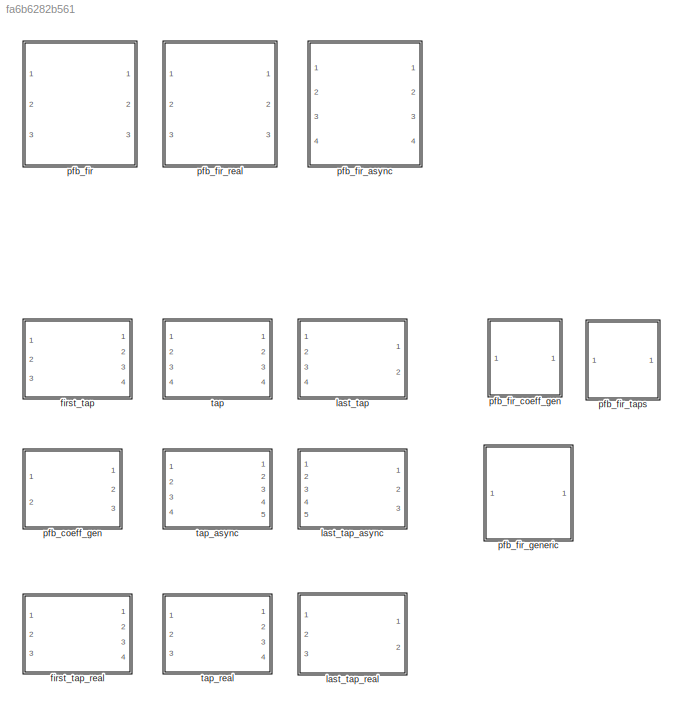
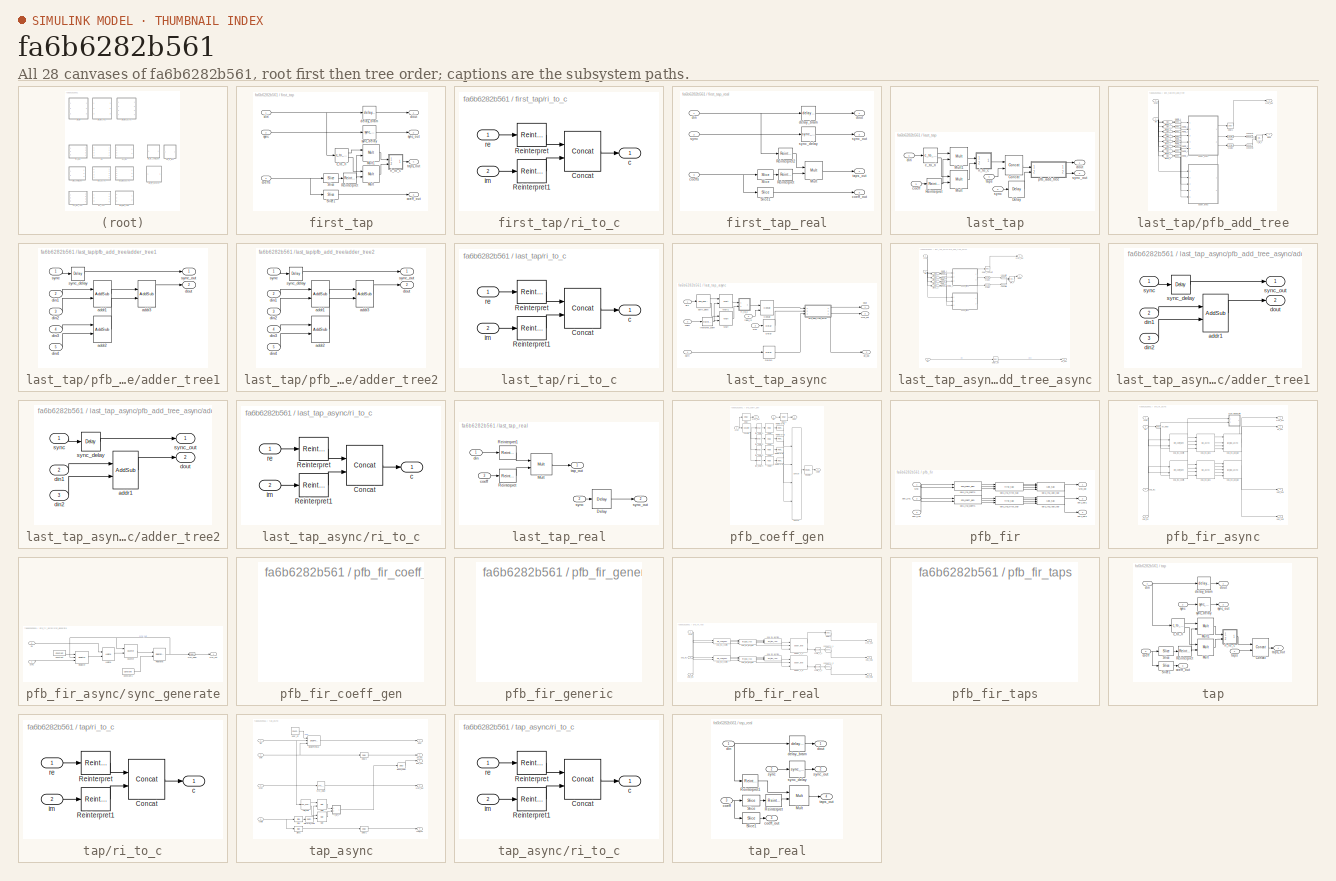
[diagram: thumbnail index - all 28 canvases of the model, root first then tree order]
MODEL slx_fa6b6282b561
KIND library
CONFIG AbsTol = auto
CONFIG FixedStep = auto
CONFIG MaxStep = auto
CONFIG MinStep = auto
CONFIG RelTol = 1e-3
CONFIG SampleTimeConstraint = Unconstrained
CONFIG Solver = ode45
CONFIG SolverMode = SingleTasking
CONFIG SolverName = ode45
CONFIG StartTime = 0.0
CONFIG StopTime = 10.0
BLOCK [SubSystem] first_tap
  AttributesFormatString = taps=4
  Ports = [3, 4]
  RequestExecContextInheritance = off
  UserDataPersistent = on
  Variant = off
BLOCK [Reference] first_tap/Mult  REF=xbsIndex_r4/Mult
  Ports = [2, 1]
  SourceBlock = xbsIndex_r4/Mult
  SourceType = Xilinx Multiplier Block
BLOCK [Reference] first_tap/Mult1  REF=xbsIndex_r4/Mult
  Ports = [2, 1]
  SourceBlock = xbsIndex_r4/Mult
  SourceType = Xilinx Multiplier Block
BLOCK [Reference] first_tap/Reinterpret  REF=xbsIndex_r4/Reinterpret
  Ports = [1, 1]
  SourceBlock = xbsIndex_r4/Reinterpret
  SourceType = Xilinx Type Reinterpreter Block
BLOCK [Reference] first_tap/Slice  REF=xbsIndex_r4/Slice
  Ports = [1, 1]
  SourceBlock = xbsIndex_r4/Slice
  SourceType = Xilinx Bit Slice Extractor Block
BLOCK [Reference] first_tap/Slice1  REF=xbsIndex_r4/Slice
  Ports = [1, 1]
  SourceBlock = xbsIndex_r4/Slice
  SourceType = Xilinx Bit Slice Extractor Block
BLOCK [Reference] first_tap/c_to_ri  REF=casper_library_misc/c_to_ri  (lib defined in mdl_357510c33b49, mdl_57b5f564ae26, +4 more)
  AttributesFormatString = _ r/i
  Ports = [1, 2]
  SourceBlock = casper_library_misc/c_to_ri
  SourceType = c_to_ri
  UserDataPersistent = on
BLOCK [Outport] first_tap/coeff_out
  IconDisplay = Port number
  Port = 3
BLOCK [Inport] first_tap/coeffs
  IconDisplay = Port number
  Port = 3
BLOCK [Reference] first_tap/delay_bram  REF=casper_library_delays/delay_bram  (lib defined in mdl_259a08a3fac5, mdl_65009615caaa, +5 more)
  Ports = [1, 1]
  SourceBlock = casper_library_delays/delay_bram
  SourceType = delay_bram
  UserDataPersistent = on
BLOCK [Inport] first_tap/din
  IconDisplay = Port number
BLOCK [Outport] first_tap/dout
  IconDisplay = Port number
BLOCK [SubSystem] first_tap/ri_to_c
  Ports = [2, 1]
  RequestExecContextInheritance = off
  Variant = off
BLOCK [Reference] first_tap/ri_to_c/Concat  REF=xbsIndex_r4/Concat
  Ports = [2, 1]
  SourceBlock = xbsIndex_r4/Concat
  SourceType = Xilinx Bus Concatenator Block
BLOCK [Reference] first_tap/ri_to_c/Reinterpret  REF=xbsIndex_r4/Reinterpret
  Ports = [1, 1]
  SourceBlock = xbsIndex_r4/Reinterpret
  SourceType = Xilinx Type Reinterpreter Block
BLOCK [Reference] first_tap/ri_to_c/Reinterpret1  REF=xbsIndex_r4/Reinterpret
  Ports = [1, 1]
  SourceBlock = xbsIndex_r4/Reinterpret
  SourceType = Xilinx Type Reinterpreter Block
BLOCK [Outport] first_tap/ri_to_c/c
  IconDisplay = Port number
BLOCK [Inport] first_tap/ri_to_c/im
  IconDisplay = Port number
  Port = 2
BLOCK [Inport] first_tap/ri_to_c/re
  IconDisplay = Port number
BLOCK [Inport] first_tap/sync
  IconDisplay = Port number
  Port = 2
BLOCK [Reference] first_tap/sync_delay  REF=casper_library_delays/sync_delay  (lib defined in mdl_259a08a3fac5, mdl_65009615caaa, +5 more)
  Ports = [1, 1]
  SourceBlock = casper_library_delays/sync_delay
  SourceType = sync_delay
BLOCK [Outport] first_tap/sync_out
  IconDisplay = Port number
  Port = 2
BLOCK [Outport] first_tap/taps_out
  IconDisplay = Port number
  Port = 4
BLOCK [SubSystem] first_tap_real
  AttributesFormatString = taps=4
  Ports = [3, 4]
  RequestExecContextInheritance = off
  UserDataPersistent = on
  Variant = off
BLOCK [Reference] first_tap_real/Mult  REF=xbsIndex_r4/Mult
  Ports = [2, 1]
  SourceBlock = xbsIndex_r4/Mult
  SourceType = Xilinx Multiplier Block
BLOCK [Reference] first_tap_real/Reinterpret  REF=xbsIndex_r4/Reinterpret
  Ports = [1, 1]
  SourceBlock = xbsIndex_r4/Reinterpret
  SourceType = Xilinx Type Reinterpreter Block
BLOCK [Reference] first_tap_real/Reinterpret2  REF=xbsIndex_r4/Reinterpret
  Ports = [1, 1]
  SourceBlock = xbsIndex_r4/Reinterpret
  SourceType = Xilinx Type Reinterpreter Block
BLOCK [Reference] first_tap_real/Slice  REF=xbsIndex_r4/Slice
  Ports = [1, 1]
  SourceBlock = xbsIndex_r4/Slice
  SourceType = Xilinx Bit Slice Extractor Block
BLOCK [Reference] first_tap_real/Slice1  REF=xbsIndex_r4/Slice
  Ports = [1, 1]
  SourceBlock = xbsIndex_r4/Slice
  SourceType = Xilinx Bit Slice Extractor Block
BLOCK [Outport] first_tap_real/coeff_out
  IconDisplay = Port number
  Port = 3
BLOCK [Inport] first_tap_real/coeffs
  IconDisplay = Port number
  Port = 3
BLOCK [Reference] first_tap_real/delay_bram  REF=casper_library_delays/delay_bram  (lib defined in mdl_259a08a3fac5, mdl_65009615caaa, +5 more)
  Ports = [1, 1]
  SourceBlock = casper_library_delays/delay_bram
  SourceType = delay_bram
  UserDataPersistent = on
BLOCK [Inport] first_tap_real/din
  IconDisplay = Port number
BLOCK [Outport] first_tap_real/dout
  IconDisplay = Port number
BLOCK [Inport] first_tap_real/sync
  IconDisplay = Port number
  Port = 2
BLOCK [Reference] first_tap_real/sync_delay  REF=casper_library_delays/sync_delay  (lib defined in mdl_259a08a3fac5, mdl_65009615caaa, +5 more)
  Ports = [1, 1]
  SourceBlock = casper_library_delays/sync_delay
  SourceType = sync_delay
BLOCK [Outport] first_tap_real/sync_out
  IconDisplay = Port number
  Port = 2
BLOCK [Outport] first_tap_real/taps_out
  IconDisplay = Port number
  Port = 4
BLOCK [SubSystem] last_tap
  AttributesFormatString = taps=4
  Ports = [4, 2]
  RequestExecContextInheritance = off
  UserDataPersistent = on
  Variant = off
BLOCK [Reference] last_tap/Concat  REF=xbsIndex_r4/Concat
  Ports = [2, 1]
  SourceBlock = xbsIndex_r4/Concat
  SourceType = Xilinx Bus Concatenator Block
BLOCK [Reference] last_tap/Delay  REF=xbsIndex_r4/Delay
  Ports = [1, 1]
  SourceBlock = xbsIndex_r4/Delay
  SourceType = Xilinx Delay Block
BLOCK [Reference] last_tap/Mult  REF=xbsIndex_r4/Mult
  Ports = [2, 1]
  SourceBlock = xbsIndex_r4/Mult
  SourceType = Xilinx Multiplier Block
BLOCK [Reference] last_tap/Mult1  REF=xbsIndex_r4/Mult
  Ports = [2, 1]
  SourceBlock = xbsIndex_r4/Mult
  SourceType = Xilinx Multiplier Block
BLOCK [Reference] last_tap/Reinterpret  REF=xbsIndex_r4/Reinterpret
  Ports = [1, 1]
  SourceBlock = xbsIndex_r4/Reinterpret
  SourceType = Xilinx Type Reinterpreter Block
BLOCK [Reference] last_tap/c_to_ri  REF=casper_library_misc/c_to_ri  (lib defined in mdl_357510c33b49, mdl_57b5f564ae26, +4 more)
  AttributesFormatString = _ r/i
  Ports = [1, 2]
  SourceBlock = casper_library_misc/c_to_ri
  SourceType = c_to_ri
  UserDataPersistent = on
BLOCK [Inport] last_tap/coeff
  IconDisplay = Port number
  Port = 3
BLOCK [Inport] last_tap/din
  IconDisplay = Port number
BLOCK [Outport] last_tap/dout
  IconDisplay = Port number
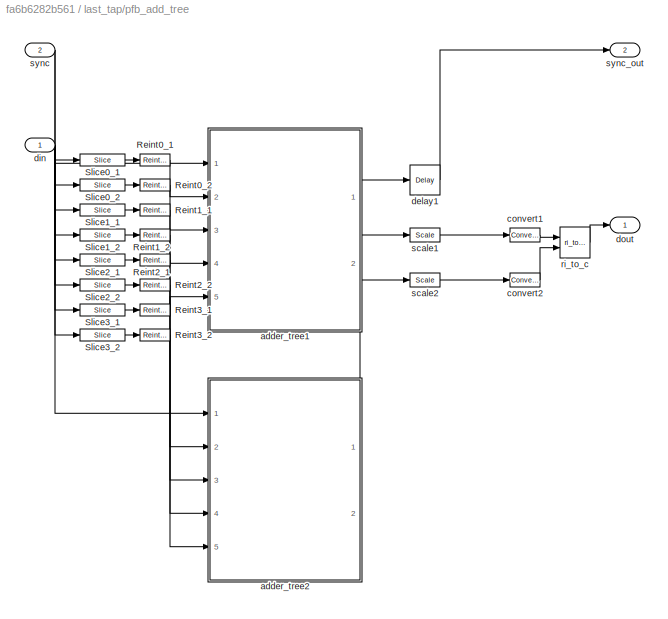
BLOCK [SubSystem] last_tap/pfb_add_tree
  AttributesFormatString = taps=4, add_latency=1
  Ports = [2, 2]
  RequestExecContextInheritance = off
  UserDataPersistent = on
  Variant = off
BLOCK [Reference] last_tap/pfb_add_tree/Reint0_1  REF=xbsIndex_r4/Reinterpret
  Ports = [1, 1]
  SourceBlock = xbsIndex_r4/Reinterpret
  SourceType = Xilinx Type Reinterpreter Block
BLOCK [Reference] last_tap/pfb_add_tree/Reint0_2  REF=xbsIndex_r4/Reinterpret
  Ports = [1, 1]
  SourceBlock = xbsIndex_r4/Reinterpret
  SourceType = Xilinx Type Reinterpreter Block
BLOCK [Reference] last_tap/pfb_add_tree/Reint1_1  REF=xbsIndex_r4/Reinterpret
  Ports = [1, 1]
  SourceBlock = xbsIndex_r4/Reinterpret
  SourceType = Xilinx Type Reinterpreter Block
BLOCK [Reference] last_tap/pfb_add_tree/Reint1_2  REF=xbsIndex_r4/Reinterpret
  Ports = [1, 1]
  SourceBlock = xbsIndex_r4/Reinterpret
  SourceType = Xilinx Type Reinterpreter Block
BLOCK [Reference] last_tap/pfb_add_tree/Reint2_1  REF=xbsIndex_r4/Reinterpret
  Ports = [1, 1]
  SourceBlock = xbsIndex_r4/Reinterpret
  SourceType = Xilinx Type Reinterpreter Block
BLOCK [Reference] last_tap/pfb_add_tree/Reint2_2  REF=xbsIndex_r4/Reinterpret
  Ports = [1, 1]
  SourceBlock = xbsIndex_r4/Reinterpret
  SourceType = Xilinx Type Reinterpreter Block
BLOCK [Reference] last_tap/pfb_add_tree/Reint3_1  REF=xbsIndex_r4/Reinterpret
  Ports = [1, 1]
  SourceBlock = xbsIndex_r4/Reinterpret
  SourceType = Xilinx Type Reinterpreter Block
BLOCK [Reference] last_tap/pfb_add_tree/Reint3_2  REF=xbsIndex_r4/Reinterpret
  Ports = [1, 1]
  SourceBlock = xbsIndex_r4/Reinterpret
  SourceType = Xilinx Type Reinterpreter Block
BLOCK [Reference] last_tap/pfb_add_tree/Slice0_1  REF=xbsIndex_r4/Slice
  Ports = [1, 1]
  SourceBlock = xbsIndex_r4/Slice
  SourceType = Xilinx Bit Slice Extractor Block
BLOCK [Reference] last_tap/pfb_add_tree/Slice0_2  REF=xbsIndex_r4/Slice
  Ports = [1, 1]
  SourceBlock = xbsIndex_r4/Slice
  SourceType = Xilinx Bit Slice Extractor Block
BLOCK [Reference] last_tap/pfb_add_tree/Slice1_1  REF=xbsIndex_r4/Slice
  Ports = [1, 1]
  SourceBlock = xbsIndex_r4/Slice
  SourceType = Xilinx Bit Slice Extractor Block
BLOCK [Reference] last_tap/pfb_add_tree/Slice1_2  REF=xbsIndex_r4/Slice
  Ports = [1, 1]
  SourceBlock = xbsIndex_r4/Slice
  SourceType = Xilinx Bit Slice Extractor Block
BLOCK [Reference] last_tap/pfb_add_tree/Slice2_1  REF=xbsIndex_r4/Slice
  Ports = [1, 1]
  SourceBlock = xbsIndex_r4/Slice
  SourceType = Xilinx Bit Slice Extractor Block
BLOCK [Reference] last_tap/pfb_add_tree/Slice2_2  REF=xbsIndex_r4/Slice
  Ports = [1, 1]
  SourceBlock = xbsIndex_r4/Slice
  SourceType = Xilinx Bit Slice Extractor Block
BLOCK [Reference] last_tap/pfb_add_tree/Slice3_1  REF=xbsIndex_r4/Slice
  Ports = [1, 1]
  SourceBlock = xbsIndex_r4/Slice
  SourceType = Xilinx Bit Slice Extractor Block
BLOCK [Reference] last_tap/pfb_add_tree/Slice3_2  REF=xbsIndex_r4/Slice
  Ports = [1, 1]
  SourceBlock = xbsIndex_r4/Slice
  SourceType = Xilinx Bit Slice Extractor Block
BLOCK [SubSystem] last_tap/pfb_add_tree/adder_tree1
  AncestorBlock = casper_library_misc/adder_tree
  AttributesFormatString = latency 2
  Ports = [5, 2]
  RequestExecContextInheritance = off
  UserDataPersistent = on
  Variant = off
BLOCK [Reference] last_tap/pfb_add_tree/adder_tree1/addr1  REF=xbsIndex_r4/AddSub
  Ports = [2, 1]
  SourceBlock = xbsIndex_r4/AddSub
  SourceType = Xilinx Adder/Subtracter Block
BLOCK [Reference] last_tap/pfb_add_tree/adder_tree1/addr2  REF=xbsIndex_r4/AddSub
  Ports = [2, 1]
  SourceBlock = xbsIndex_r4/AddSub
  SourceType = Xilinx Adder/Subtracter Block
BLOCK [Reference] last_tap/pfb_add_tree/adder_tree1/addr3  REF=xbsIndex_r4/AddSub
  Ports = [2, 1]
  SourceBlock = xbsIndex_r4/AddSub
  SourceType = Xilinx Adder/Subtracter Block
BLOCK [Inport] last_tap/pfb_add_tree/adder_tree1/din1
  IconDisplay = Port number
  Port = 2
BLOCK [Inport] last_tap/pfb_add_tree/adder_tree1/din2
  IconDisplay = Port number
  Port = 3
BLOCK [Inport] last_tap/pfb_add_tree/adder_tree1/din3
  IconDisplay = Port number
  Port = 4
BLOCK [Inport] last_tap/pfb_add_tree/adder_tree1/din4
  IconDisplay = Port number
  Port = 5
BLOCK [Outport] last_tap/pfb_add_tree/adder_tree1/dout
  IconDisplay = Port number
  Port = 2
BLOCK [Inport] last_tap/pfb_add_tree/adder_tree1/sync
  IconDisplay = Port number
BLOCK [Reference] last_tap/pfb_add_tree/adder_tree1/sync_delay  REF=xbsIndex_r4/Delay
  Ports = [1, 1]
  SourceBlock = xbsIndex_r4/Delay
  SourceType = Xilinx Delay Block
BLOCK [Outport] last_tap/pfb_add_tree/adder_tree1/sync_out
  IconDisplay = Port number
BLOCK [SubSystem] last_tap/pfb_add_tree/adder_tree2
  AncestorBlock = casper_library_misc/adder_tree
  AttributesFormatString = latency 2
  Ports = [5, 2]
  RequestExecContextInheritance = off
  UserDataPersistent = on
  Variant = off
BLOCK [Reference] last_tap/pfb_add_tree/adder_tree2/addr1  REF=xbsIndex_r4/AddSub
  Ports = [2, 1]
  SourceBlock = xbsIndex_r4/AddSub
  SourceType = Xilinx Adder/Subtracter Block
BLOCK [Reference] last_tap/pfb_add_tree/adder_tree2/addr2  REF=xbsIndex_r4/AddSub
  Ports = [2, 1]
  SourceBlock = xbsIndex_r4/AddSub
  SourceType = Xilinx Adder/Subtracter Block
BLOCK [Reference] last_tap/pfb_add_tree/adder_tree2/addr3  REF=xbsIndex_r4/AddSub
  Ports = [2, 1]
  SourceBlock = xbsIndex_r4/AddSub
  SourceType = Xilinx Adder/Subtracter Block
BLOCK [Inport] last_tap/pfb_add_tree/adder_tree2/din1
  IconDisplay = Port number
  Port = 2
BLOCK [Inport] last_tap/pfb_add_tree/adder_tree2/din2
  IconDisplay = Port number
  Port = 3
BLOCK [Inport] last_tap/pfb_add_tree/adder_tree2/din3
  IconDisplay = Port number
  Port = 4
BLOCK [Inport] last_tap/pfb_add_tree/adder_tree2/din4
  IconDisplay = Port number
  Port = 5
BLOCK [Outport] last_tap/pfb_add_tree/adder_tree2/dout
  IconDisplay = Port number
  Port = 2
BLOCK [Inport] last_tap/pfb_add_tree/adder_tree2/sync
  IconDisplay = Port number
BLOCK [Reference] last_tap/pfb_add_tree/adder_tree2/sync_delay  REF=xbsIndex_r4/Delay
  Ports = [1, 1]
  SourceBlock = xbsIndex_r4/Delay
  SourceType = Xilinx Delay Block
BLOCK [Outport] last_tap/pfb_add_tree/adder_tree2/sync_out
  IconDisplay = Port number
BLOCK [Reference] last_tap/pfb_add_tree/convert1  REF=xbsIndex_r4/Convert
  Ports = [1, 1]
  SourceBlock = xbsIndex_r4/Convert
  SourceType = Xilinx Type Converter Block
BLOCK [Reference] last_tap/pfb_add_tree/convert2  REF=xbsIndex_r4/Convert
  Ports = [1, 1]
  SourceBlock = xbsIndex_r4/Convert
  SourceType = Xilinx Type Converter Block
BLOCK [Reference] last_tap/pfb_add_tree/delay1  REF=xbsIndex_r4/Delay
  Ports = [1, 1]
  SourceBlock = xbsIndex_r4/Delay
  SourceType = Xilinx Delay Block
BLOCK [Inport] last_tap/pfb_add_tree/din
  IconDisplay = Port number
BLOCK [Outport] last_tap/pfb_add_tree/dout
  IconDisplay = Port number
BLOCK [Reference] last_tap/pfb_add_tree/ri_to_c  REF=casper_library_misc/ri_to_c  (lib defined in mdl_357510c33b49, mdl_57b5f564ae26, +4 more)
  Ports = [2, 1]
  SourceBlock = casper_library_misc/ri_to_c
  SourceType = ri_to_c
  UserDataPersistent = on
BLOCK [Reference] last_tap/pfb_add_tree/scale1  REF=xbsIndex_r4/Scale
  Ports = [1, 1]
  SourceBlock = xbsIndex_r4/Scale
  SourceType = Xilinx Input Scaler Block
BLOCK [Reference] last_tap/pfb_add_tree/scale2  REF=xbsIndex_r4/Scale
  Ports = [1, 1]
  SourceBlock = xbsIndex_r4/Scale
  SourceType = Xilinx Input Scaler Block
BLOCK [Inport] last_tap/pfb_add_tree/sync
  IconDisplay = Port number
  Port = 2
BLOCK [Outport] last_tap/pfb_add_tree/sync_out
  IconDisplay = Port number
  Port = 2
BLOCK [SubSystem] last_tap/ri_to_c
  Ports = [2, 1]
  RequestExecContextInheritance = off
  Variant = off
BLOCK [Reference] last_tap/ri_to_c/Concat  REF=xbsIndex_r4/Concat
  Ports = [2, 1]
  SourceBlock = xbsIndex_r4/Concat
  SourceType = Xilinx Bus Concatenator Block
BLOCK [Reference] last_tap/ri_to_c/Reinterpret  REF=xbsIndex_r4/Reinterpret
  Ports = [1, 1]
  SourceBlock = xbsIndex_r4/Reinterpret
  SourceType = Xilinx Type Reinterpreter Block
BLOCK [Reference] last_tap/ri_to_c/Reinterpret1  REF=xbsIndex_r4/Reinterpret
  Ports = [1, 1]
  SourceBlock = xbsIndex_r4/Reinterpret
  SourceType = Xilinx Type Reinterpreter Block
BLOCK [Outport] last_tap/ri_to_c/c
  IconDisplay = Port number
BLOCK [Inport] last_tap/ri_to_c/im
  IconDisplay = Port number
  Port = 2
BLOCK [Inport] last_tap/ri_to_c/re
  IconDisplay = Port number
BLOCK [Inport] last_tap/sync
  IconDisplay = Port number
  Port = 2
BLOCK [Outport] last_tap/sync_out
  IconDisplay = Port number
  Port = 2
BLOCK [Inport] last_tap/taps
  IconDisplay = Port number
  Port = 4
BLOCK [SubSystem] last_tap_async
  AttributesFormatString = input(1), tap(2,2)
  Ports = [5, 3]
  RequestExecContextInheritance = off
  UserDataPersistent = on
  Variant = off
BLOCK [Reference] last_tap_async/Concat  REF=xbsIndex_r4/Concat
  Ports = [2, 1]
  SourceBlock = xbsIndex_r4/Concat
  SourceType = Xilinx Bus Concatenator Block
BLOCK [Reference] last_tap_async/Delay  REF=xbsIndex_r4/Delay
  Ports = [1, 1]
  SourceBlock = xbsIndex_r4/Delay
  SourceType = Xilinx Delay Block
BLOCK [Reference] last_tap_async/Delay1  REF=xbsIndex_r4/Delay
  Ports = [1, 1]
  SourceBlock = xbsIndex_r4/Delay
  SourceType = Xilinx Delay Block
BLOCK [Reference] last_tap_async/Mult  REF=xbsIndex_r4/Mult
  Ports = [2, 1]
  SourceBlock = xbsIndex_r4/Mult
  SourceType = Xilinx Multiplier Block
BLOCK [Reference] last_tap_async/Mult1  REF=xbsIndex_r4/Mult
  Ports = [2, 1]
  SourceBlock = xbsIndex_r4/Mult
  SourceType = Xilinx Multiplier Block
BLOCK [Inport] last_tap_async/coeff
  IconDisplay = Port number
  Port = 3
BLOCK [Inport] last_tap_async/din
  IconDisplay = Port number
BLOCK [Outport] last_tap_async/dout
  IconDisplay = Port number
BLOCK [Outport] last_tap_async/dv_out
  IconDisplay = Port number
  Port = 3
BLOCK [Inport] last_tap_async/dvin
  IconDisplay = Port number
  Port = 4
BLOCK [Reference] last_tap_async/interpret_coeff  REF=xbsIndex_r4/Reinterpret
  Ports = [1, 1]
  SourceBlock = xbsIndex_r4/Reinterpret
  SourceType = Xilinx Type Reinterpreter Block
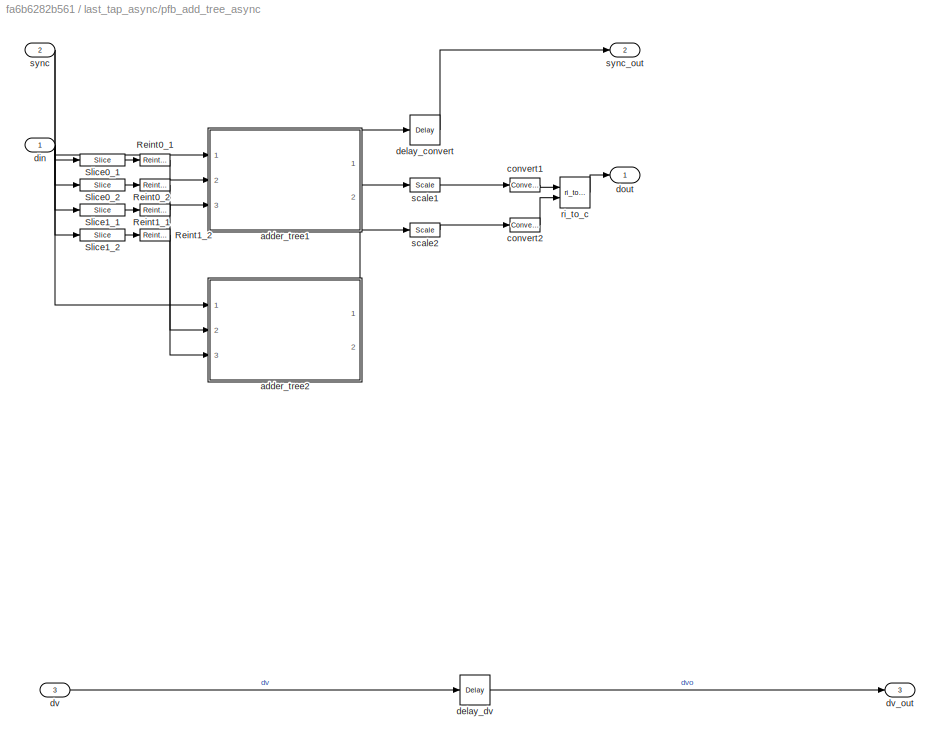
BLOCK [SubSystem] last_tap_async/pfb_add_tree_async
  AttributesFormatString = input(1), taps(2), add_lat(1)
  Ports = [3, 3]
  RequestExecContextInheritance = off
  UserDataPersistent = on
  Variant = off
BLOCK [Reference] last_tap_async/pfb_add_tree_async/Reint0_1  REF=xbsIndex_r4/Reinterpret
  Ports = [1, 1]
  SourceBlock = xbsIndex_r4/Reinterpret
  SourceType = Xilinx Type Reinterpreter Block
BLOCK [Reference] last_tap_async/pfb_add_tree_async/Reint0_2  REF=xbsIndex_r4/Reinterpret
  Ports = [1, 1]
  SourceBlock = xbsIndex_r4/Reinterpret
  SourceType = Xilinx Type Reinterpreter Block
BLOCK [Reference] last_tap_async/pfb_add_tree_async/Reint1_1  REF=xbsIndex_r4/Reinterpret
  Ports = [1, 1]
  SourceBlock = xbsIndex_r4/Reinterpret
  SourceType = Xilinx Type Reinterpreter Block
BLOCK [Reference] last_tap_async/pfb_add_tree_async/Reint1_2  REF=xbsIndex_r4/Reinterpret
  Ports = [1, 1]
  SourceBlock = xbsIndex_r4/Reinterpret
  SourceType = Xilinx Type Reinterpreter Block
BLOCK [Reference] last_tap_async/pfb_add_tree_async/Slice0_1  REF=xbsIndex_r4/Slice
  Ports = [1, 1]
  SourceBlock = xbsIndex_r4/Slice
  SourceType = Xilinx Bit Slice Extractor Block
BLOCK [Reference] last_tap_async/pfb_add_tree_async/Slice0_2  REF=xbsIndex_r4/Slice
  Ports = [1, 1]
  SourceBlock = xbsIndex_r4/Slice
  SourceType = Xilinx Bit Slice Extractor Block
BLOCK [Reference] last_tap_async/pfb_add_tree_async/Slice1_1  REF=xbsIndex_r4/Slice
  Ports = [1, 1]
  SourceBlock = xbsIndex_r4/Slice
  SourceType = Xilinx Bit Slice Extractor Block
BLOCK [Reference] last_tap_async/pfb_add_tree_async/Slice1_2  REF=xbsIndex_r4/Slice
  Ports = [1, 1]
  SourceBlock = xbsIndex_r4/Slice
  SourceType = Xilinx Bit Slice Extractor Block
BLOCK [SubSystem] last_tap_async/pfb_add_tree_async/adder_tree1
  AncestorBlock = casper_library_misc/adder_tree
  AttributesFormatString = latency 1
  Ports = [3, 2]
  RequestExecContextInheritance = off
  UserDataPersistent = on
  Variant = off
BLOCK [Reference] last_tap_async/pfb_add_tree_async/adder_tree1/addr1  REF=xbsIndex_r4/AddSub
  Ports = [2, 1]
  SourceBlock = xbsIndex_r4/AddSub
  SourceType = Xilinx Adder/Subtracter Block
BLOCK [Inport] last_tap_async/pfb_add_tree_async/adder_tree1/din1
  IconDisplay = Port number
  Port = 2
BLOCK [Inport] last_tap_async/pfb_add_tree_async/adder_tree1/din2
  IconDisplay = Port number
  Port = 3
BLOCK [Outport] last_tap_async/pfb_add_tree_async/adder_tree1/dout
  IconDisplay = Port number
  Port = 2
BLOCK [Inport] last_tap_async/pfb_add_tree_async/adder_tree1/sync
  IconDisplay = Port number
BLOCK [Reference] last_tap_async/pfb_add_tree_async/adder_tree1/sync_delay  REF=xbsIndex_r4/Delay
  Ports = [1, 1]
  SourceBlock = xbsIndex_r4/Delay
  SourceType = Xilinx Delay Block
BLOCK [Outport] last_tap_async/pfb_add_tree_async/adder_tree1/sync_out
  IconDisplay = Port number
BLOCK [SubSystem] last_tap_async/pfb_add_tree_async/adder_tree2
  AncestorBlock = casper_library_misc/adder_tree
  AttributesFormatString = latency 1
  Ports = [3, 2]
  RequestExecContextInheritance = off
  UserDataPersistent = on
  Variant = off
BLOCK [Reference] last_tap_async/pfb_add_tree_async/adder_tree2/addr1  REF=xbsIndex_r4/AddSub
  Ports = [2, 1]
  SourceBlock = xbsIndex_r4/AddSub
  SourceType = Xilinx Adder/Subtracter Block
BLOCK [Inport] last_tap_async/pfb_add_tree_async/adder_tree2/din1
  IconDisplay = Port number
  Port = 2
BLOCK [Inport] last_tap_async/pfb_add_tree_async/adder_tree2/din2
  IconDisplay = Port number
  Port = 3
BLOCK [Outport] last_tap_async/pfb_add_tree_async/adder_tree2/dout
  IconDisplay = Port number
  Port = 2
BLOCK [Inport] last_tap_async/pfb_add_tree_async/adder_tree2/sync
  IconDisplay = Port number
BLOCK [Reference] last_tap_async/pfb_add_tree_async/adder_tree2/sync_delay  REF=xbsIndex_r4/Delay
  Ports = [1, 1]
  SourceBlock = xbsIndex_r4/Delay
  SourceType = Xilinx Delay Block
BLOCK [Outport] last_tap_async/pfb_add_tree_async/adder_tree2/sync_out
  IconDisplay = Port number
BLOCK [Reference] last_tap_async/pfb_add_tree_async/convert1  REF=xbsIndex_r4/Convert
  Ports = [1, 1]
  SourceBlock = xbsIndex_r4/Convert
  SourceType = Xilinx Type Converter Block
BLOCK [Reference] last_tap_async/pfb_add_tree_async/convert2  REF=xbsIndex_r4/Convert
  Ports = [1, 1]
  SourceBlock = xbsIndex_r4/Convert
  SourceType = Xilinx Type Converter Block
BLOCK [Reference] last_tap_async/pfb_add_tree_async/delay_convert  REF=xbsIndex_r4/Delay
  Ports = [1, 1]
  SourceBlock = xbsIndex_r4/Delay
  SourceType = Xilinx Delay Block
BLOCK [Reference] last_tap_async/pfb_add_tree_async/delay_dv  REF=xbsIndex_r4/Delay
  Ports = [1, 1]
  SourceBlock = xbsIndex_r4/Delay
  SourceType = Xilinx Delay Block
BLOCK [Inport] last_tap_async/pfb_add_tree_async/din
  IconDisplay = Port number
BLOCK [Outport] last_tap_async/pfb_add_tree_async/dout
  IconDisplay = Port number
BLOCK [Inport] last_tap_async/pfb_add_tree_async/dv
  IconDisplay = Port number
  Port = 3
BLOCK [Outport] last_tap_async/pfb_add_tree_async/dv_out
  IconDisplay = Port number
  Port = 3
BLOCK [Reference] last_tap_async/pfb_add_tree_async/ri_to_c  REF=casper_library_misc/ri_to_c  (lib defined in mdl_357510c33b49, mdl_57b5f564ae26, +4 more)
  Ports = [2, 1]
  SourceBlock = casper_library_misc/ri_to_c
  SourceType = ri_to_c
  UserDataPersistent = on
BLOCK [Reference] last_tap_async/pfb_add_tree_async/scale1  REF=xbsIndex_r4/Scale
  Ports = [1, 1]
  SourceBlock = xbsIndex_r4/Scale
  SourceType = Xilinx Input Scaler Block
BLOCK [Reference] last_tap_async/pfb_add_tree_async/scale2  REF=xbsIndex_r4/Scale
  Ports = [1, 1]
  SourceBlock = xbsIndex_r4/Scale
  SourceType = Xilinx Input Scaler Block
BLOCK [Inport] last_tap_async/pfb_add_tree_async/sync
  IconDisplay = Port number
  Port = 2
BLOCK [Outport] last_tap_async/pfb_add_tree_async/sync_out
  IconDisplay = Port number
  Port = 2
BLOCK [SubSystem] last_tap_async/ri_to_c
  Ports = [2, 1]
  RequestExecContextInheritance = off
  Variant = off
BLOCK [Reference] last_tap_async/ri_to_c/Concat  REF=xbsIndex_r4/Concat
  Ports = [2, 1]
  SourceBlock = xbsIndex_r4/Concat
  SourceType = Xilinx Bus Concatenator Block
BLOCK [Reference] last_tap_async/ri_to_c/Reinterpret  REF=xbsIndex_r4/Reinterpret
  Ports = [1, 1]
  SourceBlock = xbsIndex_r4/Reinterpret
  SourceType = Xilinx Type Reinterpreter Block
BLOCK [Reference] last_tap_async/ri_to_c/Reinterpret1  REF=xbsIndex_r4/Reinterpret
  Ports = [1, 1]
  SourceBlock = xbsIndex_r4/Reinterpret
  SourceType = Xilinx Type Reinterpreter Block
BLOCK [Outport] last_tap_async/ri_to_c/c
  IconDisplay = Port number
BLOCK [Inport] last_tap_async/ri_to_c/im
  IconDisplay = Port number
  Port = 2
BLOCK [Inport] last_tap_async/ri_to_c/re
  IconDisplay = Port number
BLOCK [Reference] last_tap_async/split_data  REF=casper_library_flow_control/bus_expand  (lib defined in mdl_5c20b51ea67c, mdl_83efbf0f8acb, +3 more)
  AttributesFormatString = 2 outputs
  Ports = [1, 2]
  SourceBlock = casper_library_flow_control/bus_expand
  SourceType = bus_expand
  UserDataPersistent = on
BLOCK [Inport] last_tap_async/sync
  IconDisplay = Port number
  Port = 2
BLOCK [Outport] last_tap_async/sync_out
  IconDisplay = Port number
  Port = 2
BLOCK [Inport] last_tap_async/taps_in
  IconDisplay = Port number
  Port = 5
BLOCK [SubSystem] last_tap_real
  Ports = [3, 2]
  RequestExecContextInheritance = off
  UserDataPersistent = on
  Variant = off
BLOCK [Reference] last_tap_real/Delay  REF=xbsIndex_r4/Delay
  Ports = [1, 1]
  SourceBlock = xbsIndex_r4/Delay
  SourceType = Xilinx Delay Block
BLOCK [Reference] last_tap_real/Mult  REF=xbsIndex_r4/Mult
  Ports = [2, 1]
  SourceBlock = xbsIndex_r4/Mult
  SourceType = Xilinx Multiplier Block
BLOCK [Reference] last_tap_real/Reinterpret  REF=xbsIndex_r4/Reinterpret
  Ports = [1, 1]
  SourceBlock = xbsIndex_r4/Reinterpret
  SourceType = Xilinx Type Reinterpreter Block
BLOCK [Reference] last_tap_real/Reinterpret1  REF=xbsIndex_r4/Reinterpret
  Ports = [1, 1]
  SourceBlock = xbsIndex_r4/Reinterpret
  SourceType = Xilinx Type Reinterpreter Block
BLOCK [Inport] last_tap_real/coeff
  IconDisplay = Port number
  Port = 3
BLOCK [Inport] last_tap_real/din
  IconDisplay = Port number
BLOCK [Inport] last_tap_real/sync
  IconDisplay = Port number
  Port = 2
BLOCK [Outport] last_tap_real/sync_out
  IconDisplay = Port number
  Port = 2
BLOCK [Outport] last_tap_real/tap_out
  IconDisplay = Port number
BLOCK [SubSystem] pfb_coeff_gen
  AttributesFormatString = PFBSize=2, n_inputs=0,\ntaps=4, input=0
  Ports = [2, 3]
  RequestExecContextInheritance = off
  UserDataPersistent = on
  Variant = off
BLOCK [Reference] pfb_coeff_gen/Concat  REF=xbsIndex_r4/Concat
  Ports = [4, 1]
  SourceBlock = xbsIndex_r4/Concat
  SourceType = Xilinx Bus Concatenator Block
BLOCK [Reference] pfb_coeff_gen/Counter  REF=xbsIndex_r4/Counter
  Ports = [1, 1]
  SourceBlock = xbsIndex_r4/Counter
  SourceType = Xilinx Counter Block
BLOCK [Reference] pfb_coeff_gen/Delay  REF=xbsIndex_r4/Delay
  Ports = [1, 1]
  SourceBlock = xbsIndex_r4/Delay
  SourceType = Xilinx Delay Block
BLOCK [Reference] pfb_coeff_gen/Delay1  REF=xbsIndex_r4/Delay
  Ports = [1, 1]
  SourceBlock = xbsIndex_r4/Delay
  SourceType = Xilinx Delay Block
BLOCK [Reference] pfb_coeff_gen/ROM1  REF=xbsIndex_r4/ROM
  Ports = [1, 1]
  SourceBlock = xbsIndex_r4/ROM
  SourceType = Xilinx Single Port Read-Only Memory Block
BLOCK [Reference] pfb_coeff_gen/ROM2  REF=xbsIndex_r4/ROM
  Ports = [1, 1]
  SourceBlock = xbsIndex_r4/ROM
  SourceType = Xilinx Single Port Read-Only Memory Block
BLOCK [Reference] pfb_coeff_gen/ROM3  REF=xbsIndex_r4/ROM
  Ports = [1, 1]
  SourceBlock = xbsIndex_r4/ROM
  SourceType = Xilinx Single Port Read-Only Memory Block
BLOCK [Reference] pfb_coeff_gen/ROM4  REF=xbsIndex_r4/ROM
  Ports = [1, 1]
  SourceBlock = xbsIndex_r4/ROM
  SourceType = Xilinx Single Port Read-Only Memory Block
BLOCK [Reference] pfb_coeff_gen/Register  REF=xbsIndex_r4/Register
  Ports = [1, 1]
  SourceBlock = xbsIndex_r4/Register
  SourceType = Xilinx Register Block
BLOCK [Reference] pfb_coeff_gen/Reinterpret1  REF=xbsIndex_r4/Reinterpret
  Ports = [1, 1]
  SourceBlock = xbsIndex_r4/Reinterpret
  SourceType = Xilinx Type Reinterpreter Block
BLOCK [Reference] pfb_coeff_gen/Reinterpret2  REF=xbsIndex_r4/Reinterpret
  Ports = [1, 1]
  SourceBlock = xbsIndex_r4/Reinterpret
  SourceType = Xilinx Type Reinterpreter Block
BLOCK [Reference] pfb_coeff_gen/Reinterpret3  REF=xbsIndex_r4/Reinterpret
  Ports = [1, 1]
  SourceBlock = xbsIndex_r4/Reinterpret
  SourceType = Xilinx Type Reinterpreter Block
BLOCK [Reference] pfb_coeff_gen/Reinterpret4  REF=xbsIndex_r4/Reinterpret
  Ports = [1, 1]
  SourceBlock = xbsIndex_r4/Reinterpret
  SourceType = Xilinx Type Reinterpreter Block
BLOCK [Outport] pfb_coeff_gen/coeff
  IconDisplay = Port number
  Port = 3
BLOCK [Inport] pfb_coeff_gen/din
  IconDisplay = Port number
BLOCK [Outport] pfb_coeff_gen/dout
  IconDisplay = Port number
BLOCK [Reference] pfb_coeff_gen/fan_delay1  REF=xbsIndex_r4/Delay
  Ports = [1, 1]
  SourceBlock = xbsIndex_r4/Delay
  SourceType = Xilinx Delay Block
BLOCK [Reference] pfb_coeff_gen/fan_delay2  REF=xbsIndex_r4/Delay
  Ports = [1, 1]
  SourceBlock = xbsIndex_r4/Delay
  SourceType = Xilinx Delay Block
BLOCK [Reference] pfb_coeff_gen/fan_delay3  REF=xbsIndex_r4/Delay
  Ports = [1, 1]
  SourceBlock = xbsIndex_r4/Delay
  SourceType = Xilinx Delay Block
BLOCK [Reference] pfb_coeff_gen/fan_delay4  REF=xbsIndex_r4/Delay
  Ports = [1, 1]
  SourceBlock = xbsIndex_r4/Delay
  SourceType = Xilinx Delay Block
BLOCK [Inport] pfb_coeff_gen/sync
  IconDisplay = Port number
  Port = 2
BLOCK [Outport] pfb_coeff_gen/sync_out
  IconDisplay = Port number
  Port = 2
BLOCK [SubSystem] pfb_fir
  AttributesFormatString = taps=2, add_latency=1\nmax scale 0.500
  Ports = [3, 3]
  RequestExecContextInheritance = off
  Tag = casper:pfb_fir
  UserDataPersistent = on
  Variant = off
BLOCK [Inport] pfb_fir/pol1_in1
  IconDisplay = Port number
  Port = 2
BLOCK [Reference] pfb_fir/pol1_in1_coeffs  REF=casper_library_pfbs/pfb_coeff_gen  (lib defined in mdl_50091db22f6a, mdl_a05f11ac0f26, +6 more)
  AttributesFormatString = PFBSize=5, n_inputs=1,\ntaps=2, input=0
  Ports = [2, 3]
  SourceBlock = casper_library_pfbs/pfb_coeff_gen
  SourceType = pfb_coeff_gen
  UserDataPersistent = on
BLOCK [Reference] pfb_fir/pol1_in1_first_tap  REF=casper_library_pfbs/first_tap  (lib defined in mdl_50091db22f6a, mdl_a05f11ac0f26, +6 more)
  AttributesFormatString = taps=2
  Ports = [3, 4]
  SourceBlock = casper_library_pfbs/first_tap
  SourceType = first_tap
  UserDataPersistent = on
BLOCK [Reference] pfb_fir/pol1_in1_last_tap  REF=casper_library_pfbs/last_tap  (lib defined in mdl_50091db22f6a, mdl_a05f11ac0f26, +6 more)
  AttributesFormatString = taps=2
  Ports = [4, 2]
  SourceBlock = casper_library_pfbs/last_tap
  SourceType = last_tap
  UserDataPersistent = on
BLOCK [Inport] pfb_fir/pol1_in2
  IconDisplay = Port number
  Port = 3
BLOCK [Reference] pfb_fir/pol1_in2_coeffs  REF=casper_library_pfbs/pfb_coeff_gen  (lib defined in mdl_50091db22f6a, mdl_a05f11ac0f26, +6 more)
  AttributesFormatString = PFBSize=5, n_inputs=1,\ntaps=2, input=1
  Ports = [2, 3]
  SourceBlock = casper_library_pfbs/pfb_coeff_gen
  SourceType = pfb_coeff_gen
  UserDataPersistent = on
BLOCK [Reference] pfb_fir/pol1_in2_first_tap  REF=casper_library_pfbs/first_tap  (lib defined in mdl_50091db22f6a, mdl_a05f11ac0f26, +6 more)
  AttributesFormatString = taps=2
  Ports = [3, 4]
  SourceBlock = casper_library_pfbs/first_tap
  SourceType = first_tap
  UserDataPersistent = on
BLOCK [Reference] pfb_fir/pol1_in2_last_tap  REF=casper_library_pfbs/last_tap  (lib defined in mdl_50091db22f6a, mdl_a05f11ac0f26, +6 more)
  AttributesFormatString = taps=2
  Ports = [4, 2]
  SourceBlock = casper_library_pfbs/last_tap
  SourceType = last_tap
  UserDataPersistent = on
BLOCK [Outport] pfb_fir/pol1_out1
  IconDisplay = Port number
  Port = 2
BLOCK [Outport] pfb_fir/pol1_out2
  IconDisplay = Port number
  Port = 3
BLOCK [Inport] pfb_fir/sync
  IconDisplay = Port number
BLOCK [Outport] pfb_fir/sync_out
  IconDisplay = Port number
BLOCK [SubSystem] pfb_fir_async
  AttributesFormatString = taps=2, add_latency=1\nmax scale 0.500
  Ports = [4, 4]
  RequestExecContextInheritance = off
  Tag = casper:pfb_fir_async
  UserDataPersistent = on
  Variant = off
BLOCK [Inport] pfb_fir_async/dv
  IconDisplay = Port number
  Port = 2
BLOCK [Reference] pfb_fir_async/dv_delay  REF=xbsIndex_r4/Delay
  Ports = [1, 1]
  SourceBlock = xbsIndex_r4/Delay
  SourceType = Xilinx Delay Block
BLOCK [Outport] pfb_fir_async/dv_out
  IconDisplay = Port number
  Port = 2
BLOCK [Inport] pfb_fir_async/pol1_in1
  IconDisplay = Port number
  Port = 3
BLOCK [Reference] pfb_fir_async/pol1_in1_coeffs  REF=casper_library_pfbs/pfb_coeff_gen  (lib defined in mdl_50091db22f6a, mdl_a05f11ac0f26, +6 more)
  AttributesFormatString = PFBSize=5, n_inputs=1,\ntaps=2, input=0
  Ports = [2, 3]
  SourceBlock = casper_library_pfbs/pfb_coeff_gen
  SourceType = pfb_coeff_gen
  UserDataPersistent = on
BLOCK [Reference] pfb_fir_async/pol1_in1_last_tap  REF=casper_library_pfbs/last_tap_async  (lib defined in mdl_50091db22f6a, mdl_a05f11ac0f26, +6 more)
  AttributesFormatString = input(1), tap(2,2)
  Ports = [5, 3]
  SourceBlock = casper_library_pfbs/last_tap_async
  SourceType = last_tap_async
  UserDataPersistent = on
BLOCK [Reference] pfb_fir_async/pol1_in1_tap1  REF=casper_library_pfbs/tap_async  (lib defined in mdl_50091db22f6a, mdl_a05f11ac0f26, +6 more)
  AttributesFormatString = tap(1/2)
  Ports = [4, 5]
  SourceBlock = casper_library_pfbs/tap_async
  SourceType = tap_async
  UserDataPersistent = on
BLOCK [Inport] pfb_fir_async/pol1_in2
  IconDisplay = Port number
  Port = 4
BLOCK [Reference] pfb_fir_async/pol1_in2_coeffs  REF=casper_library_pfbs/pfb_coeff_gen  (lib defined in mdl_50091db22f6a, mdl_a05f11ac0f26, +6 more)
  AttributesFormatString = PFBSize=5, n_inputs=1,\ntaps=2, input=1
  Ports = [2, 3]
  SourceBlock = casper_library_pfbs/pfb_coeff_gen
  SourceType = pfb_coeff_gen
  UserDataPersistent = on
BLOCK [Reference] pfb_fir_async/pol1_in2_last_tap  REF=casper_library_pfbs/last_tap_async  (lib defined in mdl_50091db22f6a, mdl_a05f11ac0f26, +6 more)
  AttributesFormatString = input(2), tap(2,2)
  Ports = [5, 3]
  SourceBlock = casper_library_pfbs/last_tap_async
  SourceType = last_tap_async
  UserDataPersistent = on
BLOCK [Reference] pfb_fir_async/pol1_in2_tap1  REF=casper_library_pfbs/tap_async  (lib defined in mdl_50091db22f6a, mdl_a05f11ac0f26, +6 more)
  AttributesFormatString = tap(1/2)
  Ports = [4, 5]
  SourceBlock = casper_library_pfbs/tap_async
  SourceType = tap_async
  UserDataPersistent = on
BLOCK [Outport] pfb_fir_async/pol1_out1
  IconDisplay = Port number
  Port = 3
BLOCK [Outport] pfb_fir_async/pol1_out2
  IconDisplay = Port number
  Port = 4
BLOCK [Inport] pfb_fir_async/sync
  IconDisplay = Port number
BLOCK [SubSystem] pfb_fir_async/sync_generate
  Ports = [2, 1]
  RequestExecContextInheritance = off
  Variant = off
BLOCK [Reference] pfb_fir_async/sync_generate/Constant  REF=xbsIndex_r4/Constant
  Ports = [0, 1]
  SourceBlock = xbsIndex_r4/Constant
  SourceType = Xilinx Constant Block Block
BLOCK [Reference] pfb_fir_async/sync_generate/Constant1  REF=xbsIndex_r4/Constant
  Ports = [0, 1]
  SourceBlock = xbsIndex_r4/Constant
  SourceType = Xilinx Constant Block Block
BLOCK [Reference] pfb_fir_async/sync_generate/Counter  REF=xbsIndex_r4/Counter
  Ports = [2, 1]
  SourceBlock = xbsIndex_r4/Counter
  SourceType = Xilinx Counter Block
BLOCK [Reference] pfb_fir_async/sync_generate/Logical  REF=xbsIndex_r4/Logical
  Ports = [2, 1]
  SourceBlock = xbsIndex_r4/Logical
  SourceType = Xilinx Logical Block Block
BLOCK [Reference] pfb_fir_async/sync_generate/Register  REF=xbsIndex_r4/Register
  Ports = [3, 1]
  SourceBlock = xbsIndex_r4/Register
  SourceType = Xilinx Register Block
BLOCK [Reference] pfb_fir_async/sync_generate/Relational  REF=xbsIndex_r4/Relational
  Ports = [2, 1]
  SourceBlock = xbsIndex_r4/Relational
  SourceType = Xilinx Arithmetic Relational Operator Block
BLOCK [Inport] pfb_fir_async/sync_generate/dv
  IconDisplay = Port number
  Port = 2
BLOCK [Inport] pfb_fir_async/sync_generate/sync
  IconDisplay = Port number
BLOCK [Reference] pfb_fir_async/sync_generate/sync_delay  REF=xbsIndex_r4/Delay
  Ports = [1, 1]
  SourceBlock = xbsIndex_r4/Delay
  SourceType = Xilinx Delay Block
BLOCK [Outport] pfb_fir_async/sync_generate/sync_out
  IconDisplay = Port number
BLOCK [Outport] pfb_fir_async/sync_out
  IconDisplay = Port number
BLOCK [SubSystem] pfb_fir_coeff_gen
  Ports = []
  RequestExecContextInheritance = off
  UserDataPersistent = on
  Variant = off
BLOCK [SubSystem] pfb_fir_generic
  Ports = []
  RequestExecContextInheritance = off
  Tag = casper:pfb_fir_generic
  UserDataPersistent = on
  Variant = off
BLOCK [SubSystem] pfb_fir_real
  AttributesFormatString = taps=2, add_latency=1
  Ports = [3, 3]
  RequestExecContextInheritance = off
  Tag = casper:pfb_fir_real
  UserDataPersistent = on
  Variant = off
BLOCK [Reference] pfb_fir_real/adder_1_1  REF=casper_library_misc/adder_tree  (lib defined in mdl_357510c33b49, mdl_57b5f564ae26, +4 more)
  AttributesFormatString = latency 1
  Ports = [3, 2]
  SourceBlock = casper_library_misc/adder_tree
  SourceType = adder_tree
  UserDataPersistent = on
BLOCK [Reference] pfb_fir_real/adder_1_2  REF=casper_library_misc/adder_tree  (lib defined in mdl_357510c33b49, mdl_57b5f564ae26, +4 more)
  AttributesFormatString = latency 1
  Ports = [3, 2]
  SourceBlock = casper_library_misc/adder_tree
  SourceType = adder_tree
  UserDataPersistent = on
BLOCK [Reference] pfb_fir_real/convert_1_1  REF=xbsIndex_r4/Convert
  Ports = [1, 1]
  SourceBlock = xbsIndex_r4/Convert
  SourceType = Xilinx Type Converter Block
BLOCK [Reference] pfb_fir_real/convert_1_2  REF=xbsIndex_r4/Convert
  Ports = [1, 1]
  SourceBlock = xbsIndex_r4/Convert
  SourceType = Xilinx Type Converter Block
BLOCK [Reference] pfb_fir_real/delay1  REF=xbsIndex_r4/Delay
  Ports = [1, 1]
  SourceBlock = xbsIndex_r4/Delay
  SourceType = Xilinx Delay Block
BLOCK [Inport] pfb_fir_real/pol1_in1
  IconDisplay = Port number
  Port = 2
BLOCK [Reference] pfb_fir_real/pol1_in1_coeffs  REF=casper_library_pfbs/pfb_coeff_gen  (lib defined in mdl_50091db22f6a, mdl_a05f11ac0f26, +6 more)
  AttributesFormatString = PFBSize=5, n_inputs=1,\ntaps=2, input=0
  Ports = [2, 3]
  SourceBlock = casper_library_pfbs/pfb_coeff_gen
  SourceType = pfb_coeff_gen
  UserDataPersistent = on
BLOCK [Reference] pfb_fir_real/pol1_in1_first_tap  REF=casper_library_pfbs/first_tap_real  (lib defined in mdl_50091db22f6a, mdl_a05f11ac0f26, +6 more)
  AttributesFormatString = taps=2
  Ports = [3, 4]
  SourceBlock = casper_library_pfbs/first_tap_real
  SourceType = first_tap_real
  UserDataPersistent = on
BLOCK [Reference] pfb_fir_real/pol1_in1_last_tap  REF=casper_library_pfbs/last_tap_real  (lib defined in mdl_50091db22f6a, mdl_a05f11ac0f26, +6 more)
  Ports = [3, 2]
  SourceBlock = casper_library_pfbs/last_tap_real
  SourceType = last_tap_real
  UserDataPersistent = on
BLOCK [Inport] pfb_fir_real/pol1_in2
  IconDisplay = Port number
  Port = 3
BLOCK [Reference] pfb_fir_real/pol1_in2_coeffs  REF=casper_library_pfbs/pfb_coeff_gen  (lib defined in mdl_50091db22f6a, mdl_a05f11ac0f26, +6 more)
  AttributesFormatString = PFBSize=5, n_inputs=1,\ntaps=2, input=1
  Ports = [2, 3]
  SourceBlock = casper_library_pfbs/pfb_coeff_gen
  SourceType = pfb_coeff_gen
  UserDataPersistent = on
BLOCK [Reference] pfb_fir_real/pol1_in2_first_tap  REF=casper_library_pfbs/first_tap_real  (lib defined in mdl_50091db22f6a, mdl_a05f11ac0f26, +6 more)
  AttributesFormatString = taps=2
  Ports = [3, 4]
  SourceBlock = casper_library_pfbs/first_tap_real
  SourceType = first_tap_real
  UserDataPersistent = on
BLOCK [Reference] pfb_fir_real/pol1_in2_last_tap  REF=casper_library_pfbs/last_tap_real  (lib defined in mdl_50091db22f6a, mdl_a05f11ac0f26, +6 more)
  Ports = [3, 2]
  SourceBlock = casper_library_pfbs/last_tap_real
  SourceType = last_tap_real
  UserDataPersistent = on
BLOCK [Outport] pfb_fir_real/pol1_out1
  IconDisplay = Port number
  Port = 2
BLOCK [Outport] pfb_fir_real/pol1_out2
  IconDisplay = Port number
  Port = 3
BLOCK [Reference] pfb_fir_real/scale_1_1  REF=xbsIndex_r4/Scale
  Ports = [1, 1]
  SourceBlock = xbsIndex_r4/Scale
  SourceType = Xilinx Input Scaler Block
BLOCK [Reference] pfb_fir_real/scale_1_2  REF=xbsIndex_r4/Scale
  Ports = [1, 1]
  SourceBlock = xbsIndex_r4/Scale
  SourceType = Xilinx Input Scaler Block
BLOCK [Inport] pfb_fir_real/sync
  IconDisplay = Port number
BLOCK [Outport] pfb_fir_real/sync_out
  IconDisplay = Port number
BLOCK [SubSystem] pfb_fir_taps
  Ports = []
  RequestExecContextInheritance = off
  UserDataPersistent = on
  Variant = off
BLOCK [SubSystem] tap
  Ports = [4, 4]
  RequestExecContextInheritance = off
  Variant = off
BLOCK [Reference] tap/Concat  REF=xbsIndex_r4/Concat
  Ports = [2, 1]
  SourceBlock = xbsIndex_r4/Concat
  SourceType = Xilinx Bus Concatenator Block
BLOCK [Reference] tap/Mult  REF=xbsIndex_r4/Mult
  Ports = [2, 1]
  SourceBlock = xbsIndex_r4/Mult
  SourceType = Xilinx Multiplier Block
BLOCK [Reference] tap/Mult1  REF=xbsIndex_r4/Mult
  Ports = [2, 1]
  SourceBlock = xbsIndex_r4/Mult
  SourceType = Xilinx Multiplier Block
BLOCK [Reference] tap/Reinterpret  REF=xbsIndex_r4/Reinterpret
  Ports = [1, 1]
  SourceBlock = xbsIndex_r4/Reinterpret
  SourceType = Xilinx Type Reinterpreter Block
BLOCK [Reference] tap/Slice  REF=xbsIndex_r4/Slice
  Ports = [1, 1]
  SourceBlock = xbsIndex_r4/Slice
  SourceType = Xilinx Bit Slice Extractor Block
BLOCK [Reference] tap/Slice1  REF=xbsIndex_r4/Slice
  Ports = [1, 1]
  SourceBlock = xbsIndex_r4/Slice
  SourceType = Xilinx Bit Slice Extractor Block
BLOCK [Reference] tap/c_to_ri  REF=casper_library_misc/c_to_ri  (lib defined in mdl_357510c33b49, mdl_57b5f564ae26, +4 more)
  AttributesFormatString = _ r/i
  Ports = [1, 2]
  SourceBlock = casper_library_misc/c_to_ri
  SourceType = c_to_ri
  UserDataPersistent = on
BLOCK [Inport] tap/coeff
  IconDisplay = Port number
  Port = 3
BLOCK [Outport] tap/coeff_out
  IconDisplay = Port number
  Port = 3
BLOCK [Reference] tap/delay_bram  REF=casper_library_delays/delay_bram  (lib defined in mdl_259a08a3fac5, mdl_65009615caaa, +5 more)
  Ports = [1, 1]
  SourceBlock = casper_library_delays/delay_bram
  SourceType = delay_bram
  UserDataPersistent = on
BLOCK [Inport] tap/din
  IconDisplay = Port number
BLOCK [Outport] tap/dout
  IconDisplay = Port number
BLOCK [SubSystem] tap/ri_to_c
  Ports = [2, 1]
  RequestExecContextInheritance = off
  Variant = off
BLOCK [Reference] tap/ri_to_c/Concat  REF=xbsIndex_r4/Concat
  Ports = [2, 1]
  SourceBlock = xbsIndex_r4/Concat
  SourceType = Xilinx Bus Concatenator Block
BLOCK [Reference] tap/ri_to_c/Reinterpret  REF=xbsIndex_r4/Reinterpret
  Ports = [1, 1]
  SourceBlock = xbsIndex_r4/Reinterpret
  SourceType = Xilinx Type Reinterpreter Block
BLOCK [Reference] tap/ri_to_c/Reinterpret1  REF=xbsIndex_r4/Reinterpret
  Ports = [1, 1]
  SourceBlock = xbsIndex_r4/Reinterpret
  SourceType = Xilinx Type Reinterpreter Block
BLOCK [Outport] tap/ri_to_c/c
  IconDisplay = Port number
BLOCK [Inport] tap/ri_to_c/im
  IconDisplay = Port number
  Port = 2
BLOCK [Inport] tap/ri_to_c/re
  IconDisplay = Port number
BLOCK [Inport] tap/sync
  IconDisplay = Port number
  Port = 2
BLOCK [Reference] tap/sync_delay  REF=casper_library_delays/sync_delay  (lib defined in mdl_259a08a3fac5, mdl_65009615caaa, +5 more)
  Ports = [1, 1]
  SourceBlock = casper_library_delays/sync_delay
  SourceType = sync_delay
BLOCK [Outport] tap/sync_out
  IconDisplay = Port number
  Port = 2
BLOCK [Inport] tap/taps
  IconDisplay = Port number
  Port = 4
BLOCK [Outport] tap/taps_out
  IconDisplay = Port number
  Port = 4
BLOCK [SubSystem] tap_async
  AttributesFormatString = tap(1/2)
  Ports = [4, 5]
  RequestExecContextInheritance = off
  UserDataPersistent = on
  Variant = off
BLOCK [Reference] tap_async/Delay1  REF=xbsIndex_r4/Delay
  Ports = [1, 1]
  SourceBlock = xbsIndex_r4/Delay
  SourceType = Xilinx Delay Block
BLOCK [Reference] tap_async/Delay2  REF=xbsIndex_r4/Delay
  Ports = [1, 1]
  SourceBlock = xbsIndex_r4/Delay
  SourceType = Xilinx Delay Block
BLOCK [Reference] tap_async/Mult  REF=xbsIndex_r4/Mult
  Ports = [2, 1]
  SourceBlock = xbsIndex_r4/Mult
  SourceType = Xilinx Multiplier Block
BLOCK [Reference] tap_async/Mult1  REF=xbsIndex_r4/Mult
  Ports = [2, 1]
  SourceBlock = xbsIndex_r4/Mult
  SourceType = Xilinx Multiplier Block
BLOCK [Reference] tap_async/Single Port RAM  REF=xbsIndex_r4/Single Port RAM
  Ports = [3, 1]
  SourceBlock = xbsIndex_r4/Single Port RAM
  SourceType = Xilinx Single Port Random Access Memory Block
BLOCK [Reference] tap_async/Slice  REF=xbsIndex_r4/Slice
  Ports = [1, 1]
  SourceBlock = xbsIndex_r4/Slice
  SourceType = Xilinx Bit Slice Extractor Block
BLOCK [Reference] tap_async/Slice1  REF=xbsIndex_r4/Slice
  Ports = [1, 1]
  SourceBlock = xbsIndex_r4/Slice
  SourceType = Xilinx Bit Slice Extractor Block
BLOCK [Reference] tap_async/addr_ctr  REF=xbsIndex_r4/Counter
  Ports = [0, 1]
  SourceBlock = xbsIndex_r4/Counter
  SourceType = Xilinx Counter Block
BLOCK [Outport] tap_async/coeff_out
  IconDisplay = Port number
  Port = 3
BLOCK [Inport] tap_async/coeffs
  IconDisplay = Port number
  Port = 3
BLOCK [Inport] tap_async/din
  IconDisplay = Port number
BLOCK [Outport] tap_async/dout
  IconDisplay = Port number
BLOCK [Outport] tap_async/dv_out
  IconDisplay = Port number
  Port = 4
BLOCK [Inport] tap_async/dvin
  IconDisplay = Port number
  Port = 4
BLOCK [Reference] tap_async/interpret_coeff  REF=xbsIndex_r4/Reinterpret
  Ports = [1, 1]
  SourceBlock = xbsIndex_r4/Reinterpret
  SourceType = Xilinx Type Reinterpreter Block
BLOCK [SubSystem] tap_async/ri_to_c
  Ports = [2, 1]
  RequestExecContextInheritance = off
  Variant = off
BLOCK [Reference] tap_async/ri_to_c/Concat  REF=xbsIndex_r4/Concat
  Ports = [2, 1]
  SourceBlock = xbsIndex_r4/Concat
  SourceType = Xilinx Bus Concatenator Block
BLOCK [Reference] tap_async/ri_to_c/Reinterpret  REF=xbsIndex_r4/Reinterpret
  Ports = [1, 1]
  SourceBlock = xbsIndex_r4/Reinterpret
  SourceType = Xilinx Type Reinterpreter Block
BLOCK [Reference] tap_async/ri_to_c/Reinterpret1  REF=xbsIndex_r4/Reinterpret
  Ports = [1, 1]
  SourceBlock = xbsIndex_r4/Reinterpret
  SourceType = Xilinx Type Reinterpreter Block
BLOCK [Outport] tap_async/ri_to_c/c
  IconDisplay = Port number
BLOCK [Inport] tap_async/ri_to_c/im
  IconDisplay = Port number
  Port = 2
BLOCK [Inport] tap_async/ri_to_c/re
  IconDisplay = Port number
BLOCK [Reference] tap_async/split_data  REF=casper_library_flow_control/bus_expand  (lib defined in mdl_5c20b51ea67c, mdl_83efbf0f8acb, +3 more)
  AttributesFormatString = 2 outputs
  Ports = [1, 2]
  SourceBlock = casper_library_flow_control/bus_expand
  SourceType = bus_expand
  UserDataPersistent = on
BLOCK [Inport] tap_async/sync
  IconDisplay = Port number
  Port = 2
BLOCK [Reference] tap_async/sync_delay  REF=casper_library_delays/sync_delay  (lib defined in mdl_259a08a3fac5, mdl_65009615caaa, +5 more)
  Ports = [1, 1]
  SourceBlock = casper_library_delays/sync_delay
  SourceType = sync_delay
BLOCK [Outport] tap_async/sync_out
  IconDisplay = Port number
  Port = 2
BLOCK [Reference] tap_async/tapout_delay  REF=xbsIndex_r4/Delay
  Ports = [1, 1]
  SourceBlock = xbsIndex_r4/Delay
  SourceType = Xilinx Delay Block
BLOCK [Outport] tap_async/taps_out
  IconDisplay = Port number
  Port = 5
BLOCK [SubSystem] tap_real
  Ports = [3, 4]
  RequestExecContextInheritance = off
  Variant = off
BLOCK [Reference] tap_real/Mult  REF=xbsIndex_r4/Mult
  Ports = [2, 1]
  SourceBlock = xbsIndex_r4/Mult
  SourceType = Xilinx Multiplier Block
BLOCK [Reference] tap_real/Reinterpret  REF=xbsIndex_r4/Reinterpret
  Ports = [1, 1]
  SourceBlock = xbsIndex_r4/Reinterpret
  SourceType = Xilinx Type Reinterpreter Block
BLOCK [Reference] tap_real/Reinterpret1  REF=xbsIndex_r4/Reinterpret
  Ports = [1, 1]
  SourceBlock = xbsIndex_r4/Reinterpret
  SourceType = Xilinx Type Reinterpreter Block
BLOCK [Reference] tap_real/Slice  REF=xbsIndex_r4/Slice
  Ports = [1, 1]
  SourceBlock = xbsIndex_r4/Slice
  SourceType = Xilinx Bit Slice Extractor Block
BLOCK [Reference] tap_real/Slice1  REF=xbsIndex_r4/Slice
  Ports = [1, 1]
  SourceBlock = xbsIndex_r4/Slice
  SourceType = Xilinx Bit Slice Extractor Block
BLOCK [Inport] tap_real/coeff
  IconDisplay = Port number
  Port = 3
BLOCK [Outport] tap_real/coeff_out
  IconDisplay = Port number
  Port = 3
BLOCK [Reference] tap_real/delay_bram  REF=casper_library_delays/delay_bram  (lib defined in mdl_259a08a3fac5, mdl_65009615caaa, +5 more)
  Ports = [1, 1]
  SourceBlock = casper_library_delays/delay_bram
  SourceType = delay_bram
  UserDataPersistent = on
BLOCK [Inport] tap_real/din
  IconDisplay = Port number
BLOCK [Outport] tap_real/dout
  IconDisplay = Port number
BLOCK [Inport] tap_real/sync
  IconDisplay = Port number
  Port = 2
BLOCK [Reference] tap_real/sync_delay  REF=casper_library_delays/sync_delay  (lib defined in mdl_259a08a3fac5, mdl_65009615caaa, +5 more)
  Ports = [1, 1]
  SourceBlock = casper_library_delays/sync_delay
  SourceType = sync_delay
BLOCK [Outport] tap_real/sync_out
  IconDisplay = Port number
  Port = 2
BLOCK [Outport] tap_real/taps_out
  IconDisplay = Port number
  Port = 4
LINE tap/Concat:1 -> tap/taps_out:1
LINE tap/Mult1:1 -> tap/ri_to_c:1
LINE tap/Mult:1 -> tap/ri_to_c:2
NET tap/Reinterpret:1 -> tap/Mult1:2, tap/Mult:2
LINE tap/Slice1:1 -> tap/coeff_out:1
LINE tap/Slice:1 -> tap/Reinterpret:1
LINE tap/c_to_ri:1 -> tap/Mult1:1
LINE tap/c_to_ri:2 -> tap/Mult:1
NET tap/coeff:1 -> tap/Slice1:1, tap/Slice:1
LINE tap/delay_bram:1 -> tap/dout:1
NET tap/din:1 -> tap/c_to_ri:1, tap/delay_bram:1
LINE tap/ri_to_c/Concat:1 -> tap/ri_to_c/c:1
LINE tap/ri_to_c/Reinterpret1:1 -> tap/ri_to_c/Concat:2
LINE tap/ri_to_c/Reinterpret:1 -> tap/ri_to_c/Concat:1
LINE tap/ri_to_c/im:1 -> tap/ri_to_c/Reinterpret1:1
LINE tap/ri_to_c/re:1 -> tap/ri_to_c/Reinterpret:1
LINE tap/ri_to_c:1 -> tap/Concat:1
LINE tap/sync:1 -> tap/sync_delay:1
LINE tap/sync_delay:1 -> tap/sync_out:1
LINE tap/taps:1 -> tap/Concat:2
note: NET lines group one-source signal fan-out (src -> all destinations, sorted); 1:1 wires keep LINE
